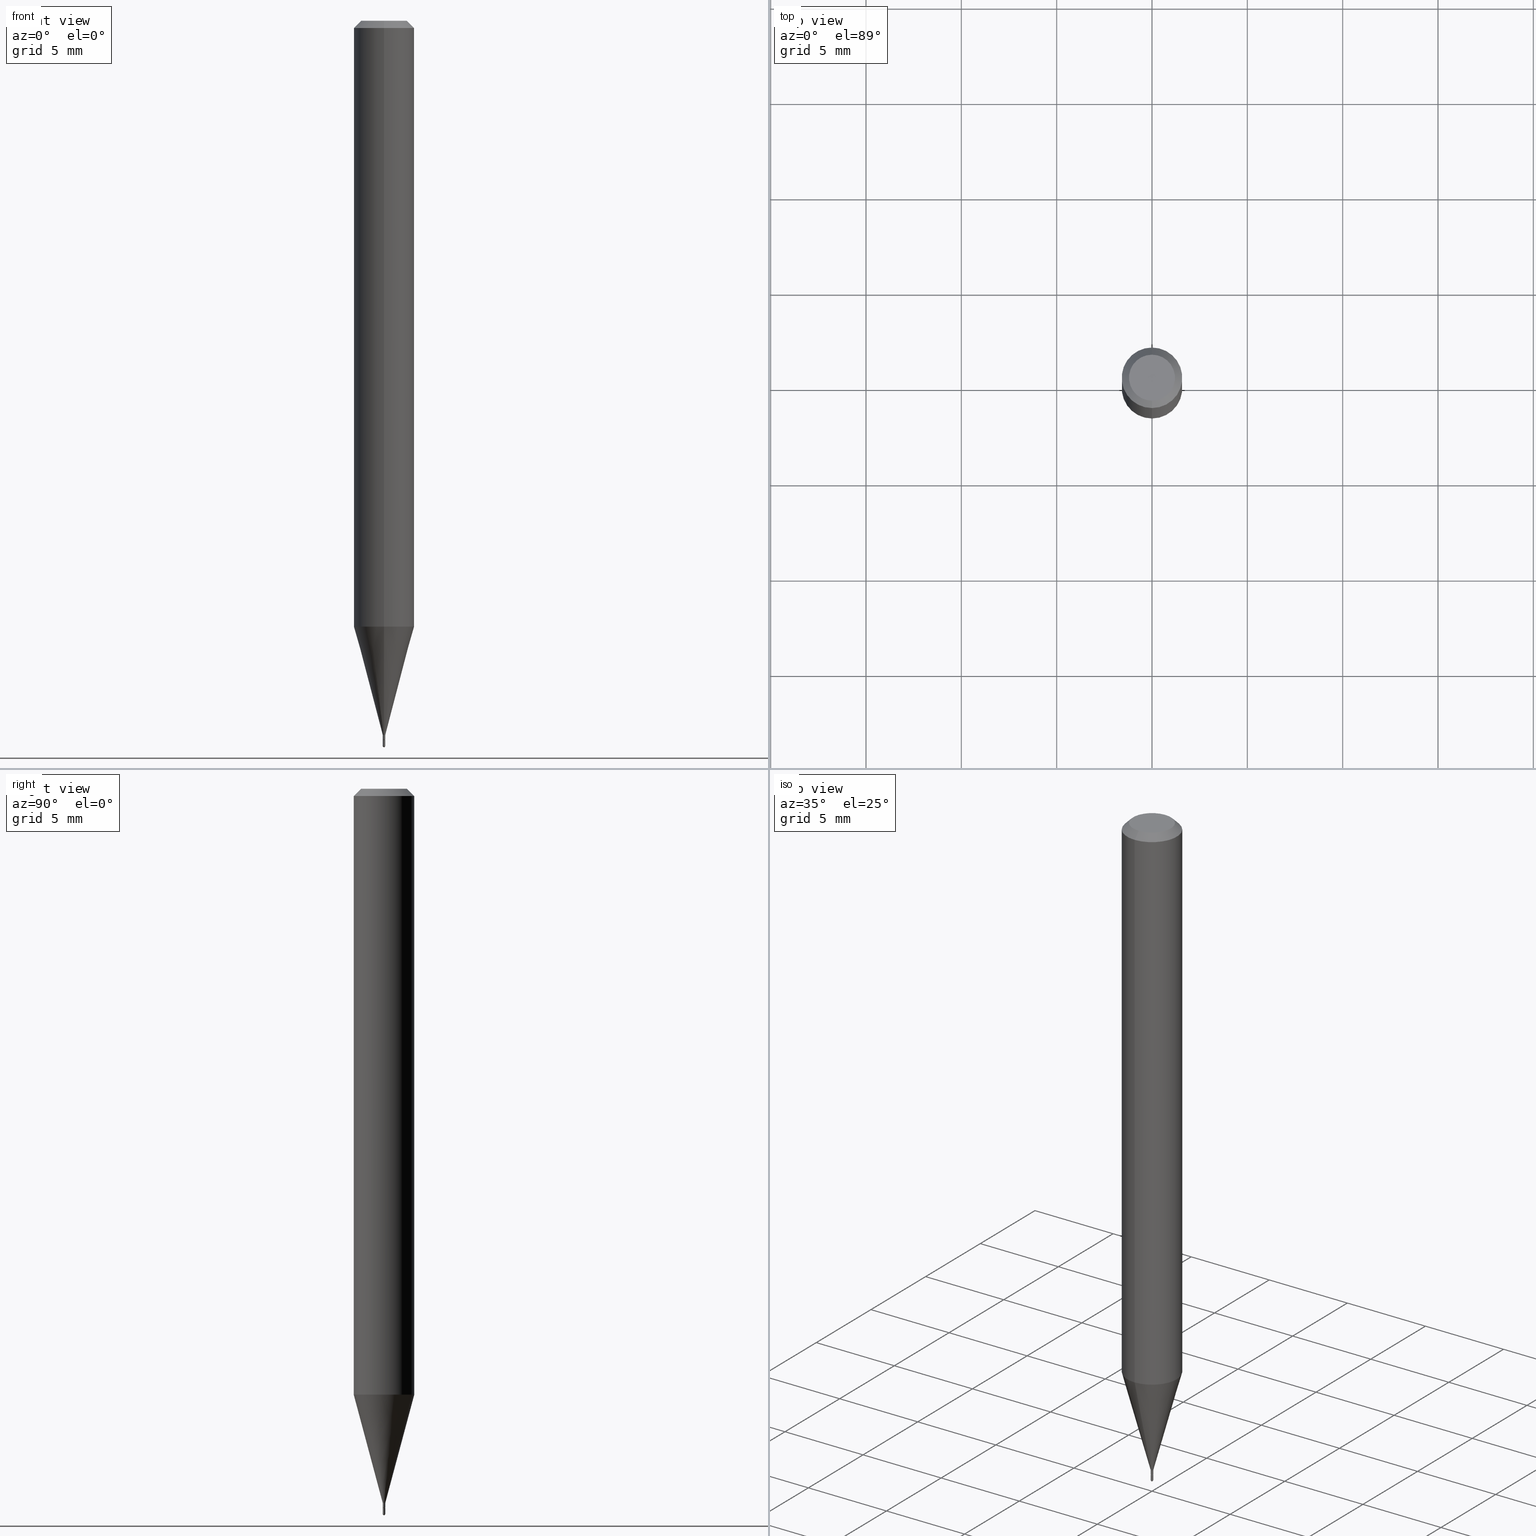
[diagram: canonical four-view strip — front | top / right | iso, engineering-drawing reading convention]
A machine part, canonical four-view strip (front | top / right | iso — engineering-drawing reading convention). The complete STEP part file that produces these views, byte-faithful:
ISO-10303-21;
HEADER;
FILE_DESCRIPTION (( 'STEP AP203' ),
    '1' );
FILE_NAME ('03103.STEP',
    '2024-03-08T18:11:31',
    ( '' ),
    ( '' ),
    'SwSTEP 2.0',
    'SolidWorks 2023',
    '' );
FILE_SCHEMA (( 'CONFIG_CONTROL_DESIGN' ));
ENDSEC;

DATA;
#1 = DIRECTION ( 'NONE',  ( -6.982962677686265922E-15, -1.000000000000000000, 0.000000000000000000 ) ) ;
#2 = AXIS2_PLACEMENT_3D ( 'NONE', #252, #399, #29 ) ;
#3 = FACE_OUTER_BOUND ( 'NONE', #314, .T. ) ;
#4 = EDGE_LOOP ( 'NONE', ( #382, #242 ) ) ;
#5 = CARTESIAN_POINT ( 'NONE',  ( 4.440892098500930859E-16, 0.06249999999999562850, -1.251076951545868177 ) ) ;
#6 = DIRECTION ( 'NONE',  ( 6.982962677686265922E-15, 1.000000000000000000, -3.483106191921935554E-15 ) ) ;
#7 = EDGE_CURVE ( 'NONE', #18, #315, #191, .T. ) ;
#8 = ORIENTED_EDGE ( 'NONE', *, *, #290, .T. ) ;
#9 = VERTEX_POINT ( 'NONE', #427 ) ;
#10 = AXIS2_PLACEMENT_3D ( 'NONE', #197, #121, #69 ) ;
#11 = AXIS2_PLACEMENT_3D ( 'NONE', #27, #292, #438 ) ;
#12 = DIRECTION ( 'NONE',  ( 1.000000000000000000, -6.982962677686266711E-15, 4.883557194083112901E-29 ) ) ;
#13 = PRODUCT_DEFINITION_SHAPE ( 'NONE', 'NONE',  #94 ) ;
#14 = DIRECTION ( 'NONE',  ( -6.982962677686266711E-15, -1.000000000000000000, 3.492036710041802963E-15 ) ) ;
#15 = EDGE_CURVE ( 'NONE', #431, #81, #110, .T. ) ;
#16 = AXIS2_PLACEMENT_3D ( 'NONE', #137, #338, #297 ) ;
#17 = DIRECTION ( 'NONE',  ( -6.982962677686265922E-15, -1.000000000000000000, 0.000000000000000000 ) ) ;
#18 = VERTEX_POINT ( 'NONE', #206 ) ;
#19 = ORIENTED_EDGE ( 'NONE', *, *, #226, .T. ) ;
#20 = CIRCLE ( 'NONE', #171, 0.002499999999999924592 ) ;
#21 = CIRCLE ( 'NONE', #11, 0.06250000000000000000 ) ;
#22 = CC_DESIGN_PERSON_AND_ORGANIZATION_ASSIGNMENT ( #436, #363, ( #164 ) ) ;
#23 = CYLINDRICAL_SURFACE ( 'NONE', #10, 0.002499999999999998751 ) ;
#24 = APPROVAL ( #271, 'UNSPECIFIED' ) ;
#25 = VECTOR ( 'NONE', #162, 39.37007874015748854 ) ;
#26 = CARTESIAN_POINT ( 'NONE',  ( -4.364351673553912750E-16, -0.06250000000000005551, -0.01499999999999954321 ) ) ;
#27 = CARTESIAN_POINT ( 'NONE',  ( 3.667621488824774095E-31, -5.238055065062620777E-17, -0.01499999999999976179 ) ) ;
#28 = EDGE_CURVE ( 'NONE', #18, #370, #313, .T. ) ;
#29 = DIRECTION ( 'NONE',  ( -6.982962677686265922E-15, -1.000000000000000000, 3.483106191921935554E-15 ) ) ;
#30 = CARTESIAN_POINT ( 'NONE',  ( 3.606494464011085468E-29, -5.150754147311658641E-15, -1.474999999999999867 ) ) ;
#31 = DIRECTION ( 'NONE',  ( -2.445468806185136877E-29, 3.491481338843145188E-15, 1.000000000000000000 ) ) ;
#32 = ORIENTED_EDGE ( 'NONE', *, *, #357, .F. ) ;
#33 = AXIS2_PLACEMENT_3D ( 'NONE', #396, #166, #477 ) ;
#34 = ADVANCED_FACE ( 'NONE', ( #66 ), #23, .T. ) ;
#35 = CARTESIAN_POINT ( 'NONE',  ( 3.630945273936584167E-29, -5.185674514412077436E-15, -1.485000000000000098 ) ) ;
#36 = DIRECTION ( 'NONE',  ( 1.000000000000000000, 0.000000000000000000, 0.000000000000000000 ) ) ;
#37 = ORIENTED_EDGE ( 'NONE', *, *, #444, .T. ) ;
#38 = PERSON_AND_ORGANIZATION ( #105, #224 ) ;
#39 = DIRECTION ( 'NONE',  ( -6.982962677686265133E-15, -1.000000000000000000, 0.000000000000000000 ) ) ;
#40 = CARTESIAN_POINT ( 'NONE',  ( 1.776356839403800684E-17, 0.002499999999994770728, -1.474999999999999867 ) ) ;
#41 = APPROVAL_STATUS ( 'not_yet_approved' ) ;
#42 = APPLICATION_PROTOCOL_DEFINITION ( 'international standard', 'config_control_design', 1994, #423 ) ;
#43 = CARTESIAN_POINT ( 'NONE',  ( 3.631521177184928138E-29, -5.184849788182071492E-15, -1.485000000000000098 ) ) ;
#44 = COORDINATED_UNIVERSAL_TIME_OFFSET ( 5, 0, .BEHIND. ) ;
#45 = CC_DESIGN_APPROVAL ( #329, ( #94 ) ) ;
#46 = DIRECTION ( 'NONE',  ( -2.445080992549888330E-29, 3.492036710041802569E-15, 1.000000000000000000 ) ) ;
#47 = CARTESIAN_POINT ( 'NONE',  ( 0.002499999999999998751, -5.202307194876286528E-15, -1.485000000000000098 ) ) ;
#48 = DIRECTION ( 'NONE',  ( 5.024295867788189396E-15, 0.7071067811865678898, 0.7071067811865271446 ) ) ;
#49 = PRODUCT ( '03103', '03103', '', ( #367 ) ) ;
#50 = ORIENTED_EDGE ( 'NONE', *, *, #323, .F. ) ;
#51 = CIRCLE ( 'NONE', #2, 0.06250000000000000000 ) ;
#52 = APPROVAL_PERSON_ORGANIZATION ( #510, #253, #469 ) ;
#53 = LINE ( 'NONE', #465, #260 ) ;
#54 = ORIENTED_EDGE ( 'NONE', *, *, #170, .F. ) ;
#55 = VERTEX_POINT ( 'NONE', #26 ) ;
#56 = EDGE_CURVE ( 'NONE', #315, #18, #20, .T. ) ;
#57 = DIRECTION ( 'NONE',  ( -2.445080992549888330E-29, 3.492036710041802569E-15, 1.000000000000000000 ) ) ;
#58 = FACE_OUTER_BOUND ( 'NONE', #460, .T. ) ;
#59 = CIRCLE ( 'NONE', #403, 0.002499999999999998751 ) ;
#60 = CIRCLE ( 'NONE', #125, 0.002499999999999883826 ) ;
#61 = ADVANCED_FACE ( 'NONE', ( #213 ), #79, .T. ) ;
#62 = DIRECTION ( 'NONE',  ( -2.445080992549888330E-29, 3.492036710041802569E-15, 1.000000000000000000 ) ) ;
#63 = ORIENTED_EDGE ( 'NONE', *, *, #400, .F. ) ;
#64 = ORIENTED_EDGE ( 'NONE', *, *, #134, .T. ) ;
#65 = ORIENTED_EDGE ( 'NONE', *, *, #312, .F. ) ;
#66 = FACE_OUTER_BOUND ( 'NONE', #398, .T. ) ;
#67 = ORIENTED_EDGE ( 'NONE', *, *, #216, .T. ) ;
#68 = ADVANCED_FACE ( 'NONE', ( #3 ), #330, .T. ) ;
#69 = DIRECTION ( 'NONE',  ( 1.000000000000000000, -6.982962677686266711E-15, 4.876176775795936914E-29 ) ) ;
#70 = CARTESIAN_POINT ( 'NONE',  ( 3.630945273936584167E-29, -5.185674514412077436E-15, -1.485000000000000098 ) ) ;
#71 = APPROVAL_DATE_TIME ( #284, #253 ) ;
#72 = CONICAL_SURFACE ( 'NONE', #379, 0.002499999999999921122, 0.2617993877991504625 ) ;
#73 = CARTESIAN_POINT ( 'NONE',  ( 1.745740669425197348E-17, 0.002499999999994814096, -1.485000000000000098 ) ) ;
#74 = AXIS2_PLACEMENT_3D ( 'NONE', #383, #195, #501 ) ;
#75 = DIRECTION ( 'NONE',  ( -6.982962677686265922E-15, -1.000000000000000000, 3.492036710041802569E-15 ) ) ;
#76 = DIRECTION ( 'NONE',  ( -6.982962677686265133E-15, -1.000000000000000000, 0.000000000000000000 ) ) ;
#77 = EDGE_CURVE ( 'NONE', #458, #131, #59, .T. ) ;
#78 = CARTESIAN_POINT ( 'NONE',  ( 3.606494464011085468E-29, -5.150754147311658641E-15, -1.474999999999999867 ) ) ;
#79 = CYLINDRICAL_SURFACE ( 'NONE', #200, 0.06250000000000000000 ) ;
#80 = ADVANCED_FACE ( 'NONE', ( #223 ), #146, .T. ) ;
#81 = VERTEX_POINT ( 'NONE', #178 ) ;
#82 = DIRECTION ( 'NONE',  ( 1.000000000000000000, -6.982962677686142071E-15, 0.000000000000000000 ) ) ;
#83 = DIRECTION ( 'NONE',  ( 1.000000000000000000, -6.982962677686142071E-15, 0.000000000000000000 ) ) ;
#84 = DATE_AND_TIME ( #291, #411 ) ;
#85 = CONICAL_SURFACE ( 'NONE', #214, 0.002499999999999921122, 0.2617993877991504625 ) ;
#86 = CIRCLE ( 'NONE', #404, 0.002499999999999921122 ) ;
#87 = DIRECTION ( 'NONE',  ( -2.445080992549888330E-29, 3.492036710041802569E-15, 1.000000000000000000 ) ) ;
#88 = ORIENTED_EDGE ( 'NONE', *, *, #300, .F. ) ;
#89 = MANIFOLD_SOLID_BREP ( 'Body-Move/Copy2[2]', #286 ) ;
#90 = EDGE_LOOP ( 'NONE', ( #305, #259, #494, #454 ) ) ;
#91 = AXIS2_PLACEMENT_3D ( 'NONE', #145, #46, #412 ) ;
#92 = EDGE_CURVE ( 'NONE', #81, #431, #274, .T. ) ;
#93 = CARTESIAN_POINT ( 'NONE',  ( -1.396592535533622474E-17, -0.002000000000005185997, -1.485000000000000098 ) ) ;
#94 = PRODUCT_DEFINITION ( 'UNKNOWN', '', #192, #126 ) ;
#95 = ADVANCED_FACE ( 'NONE', ( #141 ), #85, .T. ) ;
#96 = CARTESIAN_POINT ( 'NONE',  ( -0.002499999999999998751, -5.188907978155838555E-15, -1.485000000000000098 ) ) ;
#97 = DIRECTION ( 'NONE',  ( -2.445080992549888330E-29, 3.492036710041802569E-15, 1.000000000000000000 ) ) ;
#98 = EDGE_LOOP ( 'NONE', ( #116, #416 ) ) ;
#99 = EDGE_CURVE ( 'NONE', #422, #9, #317, .T. ) ;
#100 = AXIS2_PLACEMENT_3D ( 'NONE', #258, #218, #369 ) ;
#101 = APPROVAL_PERSON_ORGANIZATION ( #243, #329, #316 ) ;
#102 = CARTESIAN_POINT ( 'NONE',  ( 3.630945273936584167E-29, -5.185674514412077436E-15, -1.485000000000000098 ) ) ;
#103 = ORIENTED_EDGE ( 'NONE', *, *, #296, .T. ) ;
#104 = LENGTH_MEASURE_WITH_UNIT ( LENGTH_MEASURE( 0.02539999999999999897 ), #283 );
#105 = PERSON ( 'UNSPECIFIED', 'UNSPECIFIED', 'UNSPECIFIED', ('UNSPECIFIED'), ('UNSPECIFIED'), ('UNSPECIFIED') ) ;
#106 = DIRECTION ( 'NONE',  ( -1.000000000000000000, 6.982962677686265922E-15, -4.876176775795935793E-29 ) ) ;
#107 = ADVANCED_FACE ( 'NONE', ( #326 ), #351, .F. ) ;
#108 = EDGE_LOOP ( 'NONE', ( #54, #496, #103, #406 ) ) ;
#109 = ORIENTED_EDGE ( 'NONE', *, *, #266, .T. ) ;
#110 = CIRCLE ( 'NONE', #322, 0.06250000000000000000 ) ;
#111 = EDGE_CURVE ( 'NONE', #360, #81, #120, .T. ) ;
#112 = AXIS2_PLACEMENT_3D ( 'NONE', #247, #117, #6 ) ;
#113 = VERTEX_POINT ( 'NONE', #159 ) ;
#114 = VERTEX_POINT ( 'NONE', #238 ) ;
#115 = CC_DESIGN_PERSON_AND_ORGANIZATION_ASSIGNMENT ( #38, #348, ( #94 ) ) ;
#116 = ORIENTED_EDGE ( 'NONE', *, *, #99, .F. ) ;
#117 = DIRECTION ( 'NONE',  ( 2.445080992549888330E-29, -3.492036710041802569E-15, -1.000000000000000000 ) ) ;
#118 = DIRECTION ( 'NONE',  ( -2.445080992549888330E-29, 3.492036710041802569E-15, 1.000000000000000000 ) ) ;
#119 = CARTESIAN_POINT ( 'NONE',  ( -1.745740669417863715E-17, -0.002500000000005170395, -1.497500000000000053 ) ) ;
#120 = LINE ( 'NONE', #470, #344 ) ;
#121 = DIRECTION ( 'NONE',  ( -2.445468806185136597E-29, 3.491481338843145583E-15, 1.000000000000000000 ) ) ;
#122 = ORIENTED_EDGE ( 'NONE', *, *, #226, .F. ) ;
#123 = CARTESIAN_POINT ( 'NONE',  ( -0.002499999999999998751, 1.776356839400249577E-17, -1.229733772563725911E-31 ) ) ;
#124 = VECTOR ( 'NONE', #417, 39.37007874015748143 ) ;
#125 = AXIS2_PLACEMENT_3D ( 'NONE', #176, #257, #402 ) ;
#126 = DESIGN_CONTEXT ( 'detailed design', #437, 'design' ) ;
#127 = CARTESIAN_POINT ( 'NONE',  ( 0.000000000000000000, 0.000000000000000000, 0.000000000000000000 ) ) ;
#128 = ADVANCED_FACE ( 'NONE', ( #391 ), #189, .T. ) ;
#129 = DIRECTION ( 'NONE',  ( -6.982962677686265922E-15, -1.000000000000000000, 3.492036710041802175E-15 ) ) ;
#130 = DIRECTION ( 'NONE',  ( -6.982962677686265133E-15, -1.000000000000000000, 0.000000000000000000 ) ) ;
#131 = VERTEX_POINT ( 'NONE', #96 ) ;
#132 = DIRECTION ( 'NONE',  ( -2.445080992549888330E-29, 3.492036710041802569E-15, 1.000000000000000000 ) ) ;
#133 = CALENDAR_DATE ( 2024, 8, 3 ) ;
#134 = EDGE_CURVE ( 'NONE', #81, #55, #448, .T. ) ;
#135 = ORIENTED_EDGE ( 'NONE', *, *, #400, .T. ) ;
#136 = DATE_AND_TIME ( #246, #288 ) ;
#137 = CARTESIAN_POINT ( 'NONE',  ( 3.662089537262242009E-29, -5.228493304917610659E-15, -1.497500000000000053 ) ) ;
#138 = DIRECTION ( 'NONE',  ( 2.445080992549888330E-29, -3.492036710041802569E-15, -1.000000000000000000 ) ) ;
#139 = CARTESIAN_POINT ( 'NONE',  ( 3.058984474442059272E-29, -4.368806641885360110E-15, -1.251076951545867955 ) ) ;
#140 = ORIENTED_EDGE ( 'NONE', *, *, #15, .F. ) ;
#141 = FACE_OUTER_BOUND ( 'NONE', #90, .T. ) ;
#142 = CIRCLE ( 'NONE', #318, 0.002499999999999998751 ) ;
#143 = DIRECTION ( 'NONE',  ( -6.982962677686266711E-15, -1.000000000000000000, 0.000000000000000000 ) ) ;
#144 = PERSON_AND_ORGANIZATION ( #105, #224 ) ;
#145 = CARTESIAN_POINT ( 'NONE',  ( 0.000000000000000000, 0.000000000000000000, 0.000000000000000000 ) ) ;
#146 = CONICAL_SURFACE ( 'NONE', #100, 0.002000000000000000475, 0.7853981633974737031 ) ;
#147 = VECTOR ( 'NONE', #401, 39.37007874015748143 ) ;
#148 = LINE ( 'NONE', #449, #507 ) ;
#149 = EDGE_CURVE ( 'NONE', #152, #114, #230, .T. ) ;
#150 = DIRECTION ( 'NONE',  ( 1.000000000000000000, -6.982962677686266711E-15, 4.883557194083112901E-29 ) ) ;
#151 = CARTESIAN_POINT ( 'NONE',  ( 3.662089537262242009E-29, -5.228493304917610659E-15, -1.497500000000000053 ) ) ;
#152 = VERTEX_POINT ( 'NONE', #184 ) ;
#153 = DIRECTION ( 'NONE',  ( 1.000000000000000000, -6.982962677686142071E-15, 0.000000000000000000 ) ) ;
#154 = CIRCLE ( 'NONE', #231, 0.04749999999999999362 ) ;
#155 = DATE_AND_TIME ( #498, #302 ) ;
#156 = ORIENTED_EDGE ( 'NONE', *, *, #277, .T. ) ;
#157 = CC_DESIGN_DATE_AND_TIME_ASSIGNMENT ( #204, #512, ( #164 ) ) ;
#158 = CARTESIAN_POINT ( 'NONE',  ( 3.661875745689947302E-29, -5.228799466617397749E-15, -1.497500000000000053 ) ) ;
#159 = CARTESIAN_POINT ( 'NONE',  ( 4.440892098500933817E-16, 0.06249999999999995837, -0.01499999999999997863 ) ) ;
#160 = ORIENTED_EDGE ( 'NONE', *, *, #339, .F. ) ;
#161 = UNCERTAINTY_MEASURE_WITH_UNIT (LENGTH_MEASURE( 1.000000000000000082E-05 ), #426, 'distance_accuracy_value', 'NONE');
#162 = DIRECTION ( 'NONE',  ( -4.937700262164671893E-15, -0.7071067811865628938, 0.7071067811865319186 ) ) ;
#163 = AXIS2_PLACEMENT_3D ( 'NONE', #30, #57, #380 ) ;
#164 = SECURITY_CLASSIFICATION ( '', '', #325 ) ;
#165 = VERTEX_POINT ( 'NONE', #232 ) ;
#166 = DIRECTION ( 'NONE',  ( -2.445468806185136597E-29, 3.491481338843145583E-15, 1.000000000000000000 ) ) ;
#167 = DIRECTION ( 'NONE',  ( -2.445080992549888330E-29, 3.492036710041802569E-15, 1.000000000000000000 ) ) ;
#168 = ORIENTED_EDGE ( 'NONE', *, *, #175, .T. ) ;
#169 = CARTESIAN_POINT ( 'NONE',  ( -1.745740669417888983E-17, -0.002500000000005115752, -1.484500000000000153 ) ) ;
#170 = EDGE_CURVE ( 'NONE', #114, #55, #148, .T. ) ;
#171 = AXIS2_PLACEMENT_3D ( 'NONE', #352, #97, #1 ) ;
#172 = DIRECTION ( 'NONE',  ( -2.445080992549888330E-29, 3.492036710041802569E-15, 1.000000000000000000 ) ) ;
#173 = APPROVAL_PERSON_ORGANIZATION ( #181, #24, #375 ) ;
#174 = ORIENTED_EDGE ( 'NONE', *, *, #170, .T. ) ;
#175 = EDGE_CURVE ( 'NONE', #9, #18, #415, .T. ) ;
#176 = CARTESIAN_POINT ( 'NONE',  ( 3.661875745689947302E-29, -5.228799466617397749E-15, -1.497500000000000053 ) ) ;
#177 = CARTESIAN_POINT ( 'NONE',  ( 3.606494464011085468E-29, -5.150754147311658641E-15, -1.474999999999999867 ) ) ;
#178 = CARTESIAN_POINT ( 'NONE',  ( -4.364351673553610517E-16, -0.06250000000000435763, -1.251076951545867733 ) ) ;
#179 = ORIENTED_EDGE ( 'NONE', *, *, #99, .T. ) ;
#180 = CARTESIAN_POINT ( 'NONE',  ( 3.662089537262242009E-29, -5.228493304917610659E-15, -1.497500000000000053 ) ) ;
#181 = PERSON_AND_ORGANIZATION ( #105, #224 ) ;
#182 = AXIS2_PLACEMENT_3D ( 'NONE', #481, #138, #263 ) ;
#183 = PLANE ( 'NONE',  #349 ) ;
#184 = CARTESIAN_POINT ( 'NONE',  ( 3.840629472727447874E-16, 0.04749999999999999362, 7.364327909283748346E-17 ) ) ;
#185 = AXIS2_PLACEMENT_3D ( 'NONE', #73, #241, #106 ) ;
#186 = CIRCLE ( 'NONE', #381, 0.002499999999999883826 ) ;
#187 = CARTESIAN_POINT ( 'NONE',  ( 3.316907271900976096E-16, 0.04749999999999999362, -4.611423231707403477E-17 ) ) ;
#188 = EDGE_CURVE ( 'NONE', #315, #360, #53, .T. ) ;
#189 = SPHERICAL_SURFACE ( 'NONE', #453, 0.002499999999999883826 ) ;
#190 = VERTEX_POINT ( 'NONE', #119 ) ;
#191 = CIRCLE ( 'NONE', #389, 0.002499999999999924592 ) ;
#192 = PRODUCT_DEFINITION_FORMATION_WITH_SPECIFIED_SOURCE ( 'ANY', '', #49, .NOT_KNOWN. ) ;
#193 = FACE_OUTER_BOUND ( 'NONE', #278, .T. ) ;
#194 = APPROVAL_DATE_TIME ( #155, #24 ) ;
#195 = DIRECTION ( 'NONE',  ( -2.445080992549888330E-29, 3.492036710041802569E-15, 1.000000000000000000 ) ) ;
#196 = CARTESIAN_POINT ( 'NONE',  ( 3.058984474442059272E-29, -4.368806641885360110E-15, -1.251076951545867955 ) ) ;
#197 = CARTESIAN_POINT ( 'NONE',  ( 0.000000000000000000, 0.000000000000000000, 0.000000000000000000 ) ) ;
#198 = ORIENTED_EDGE ( 'NONE', *, *, #312, .T. ) ;
#199 = APPROVAL_DATE_TIME ( #136, #329 ) ;
#200 = AXIS2_PLACEMENT_3D ( 'NONE', #405, #364, #129 ) ;
#201 = DIRECTION ( 'NONE',  ( 1.000000000000000000, -6.982962677686266711E-15, 4.876176775795936914E-29 ) ) ;
#202 = ADVANCED_FACE ( 'NONE', ( #193 ), #72, .T. ) ;
#203 = AXIS2_PLACEMENT_3D ( 'NONE', #472, #118, #240 ) ;
#204 = DATE_AND_TIME ( #133, #335 ) ;
#205 = CALENDAR_DATE ( 2024, 8, 3 ) ;
#206 = CARTESIAN_POINT ( 'NONE',  ( 1.776356839403821638E-17, 0.002499999999994733865, -1.484500000000000153 ) ) ;
#207 = EDGE_CURVE ( 'NONE', #360, #370, #293, .T. ) ;
#208 = CARTESIAN_POINT ( 'NONE',  ( -1.745740669417904699E-17, -0.002500000000005071516, -1.474999999999999867 ) ) ;
#209 = CARTESIAN_POINT ( 'NONE',  ( 2.309263891220657005E-16, 0.002499999999994770728, -1.474999999999999867 ) ) ;
#210 = PERSON_AND_ORGANIZATION ( #105, #224 ) ;
#211 = ORIENTED_EDGE ( 'NONE', *, *, #175, .F. ) ;
#212 = DIRECTION ( 'NONE',  ( 4.937700262164548042E-15, 0.7071067811865451302, -0.7071067811865499042 ) ) ;
#213 = FACE_OUTER_BOUND ( 'NONE', #229, .T. ) ;
#214 = AXIS2_PLACEMENT_3D ( 'NONE', #295, #445, #130 ) ;
#215 = AXIS2_PLACEMENT_3D ( 'NONE', #102, #328, #432 ) ;
#216 = EDGE_CURVE ( 'NONE', #499, #190, #186, .T. ) ;
#217 = CARTESIAN_POINT ( 'NONE',  ( 4.364351673553919652E-16, 0.06249999999999995143, -0.01499999999999997863 ) ) ;
#218 = DIRECTION ( 'NONE',  ( -2.445080992549888330E-29, 3.492036710041802569E-15, 1.000000000000000000 ) ) ;
#219 = VERTEX_POINT ( 'NONE', #414 ) ;
#220 = DIRECTION ( 'NONE',  ( -2.445080992549888330E-29, 3.492036710041802569E-15, 1.000000000000000000 ) ) ;
#221 = EDGE_LOOP ( 'NONE', ( #332, #109 ) ) ;
#222 = DIRECTION ( 'NONE',  ( -2.445468806185136597E-29, 3.491481338843145583E-15, 1.000000000000000000 ) ) ;
#223 = FACE_OUTER_BOUND ( 'NONE', #482, .T. ) ;
#224 = ORGANIZATION ( 'UNSPECIFIED', 'UNSPECIFIED', '' ) ;
#225 = PERSON_AND_ORGANIZATION_ROLE ( 'design_owner' ) ;
#226 = EDGE_CURVE ( 'NONE', #165, #190, #279, .T. ) ;
#227 = CYLINDRICAL_SURFACE ( 'NONE', #91, 0.002499999999999923291 ) ;
#228 = ADVANCED_FACE ( 'NONE', ( #455 ), #345, .T. ) ;
#229 = EDGE_LOOP ( 'NONE', ( #461, #156, #65, #428 ) ) ;
#230 = CIRCLE ( 'NONE', #248, 0.04749999999999999362 ) ;
#231 = AXIS2_PLACEMENT_3D ( 'NONE', #459, #234, #350 ) ;
#232 = CARTESIAN_POINT ( 'NONE',  ( -0.002499999999999998751, -5.188907978155838555E-15, -1.497500000000000053 ) ) ;
#233 = CARTESIAN_POINT ( 'NONE',  ( -5.856336297269022681E-45, 8.363952522933223333E-31, 2.395150228198230981E-16 ) ) ;
#234 = DIRECTION ( 'NONE',  ( -2.445080992549888330E-29, 3.492036710041802569E-15, 1.000000000000000000 ) ) ;
#235 = VECTOR ( 'NONE', #212, 39.37007874015748143 ) ;
#236 = DIMENSIONAL_EXPONENTS ( 1.000000000000000000, 0.000000000000000000, 0.000000000000000000, 0.000000000000000000, 0.000000000000000000, 0.000000000000000000, 0.000000000000000000 ) ;
#237 = CC_DESIGN_APPROVAL ( #253, ( #164 ) ) ;
#238 = CARTESIAN_POINT ( 'NONE',  ( -3.773273898774340269E-16, -0.04749999999999999362, 4.053867665468087251E-16 ) ) ;
#239 = EDGE_LOOP ( 'NONE', ( #160, #19, #419, #327, #275 ) ) ;
#240 = DIRECTION ( 'NONE',  ( -6.982962677686265133E-15, -1.000000000000000000, 3.492036710041802175E-15 ) ) ;
#241 = DIRECTION ( 'NONE',  ( 2.438088387897960049E-29, -3.491481338843145188E-15, -1.000000000000000000 ) ) ;
#242 = ORIENTED_EDGE ( 'NONE', *, *, #502, .T. ) ;
#243 = PERSON_AND_ORGANIZATION ( #105, #224 ) ;
#244 = CYLINDRICAL_SURFACE ( 'NONE', #203, 0.002499999999999923291 ) ;
#245 = EDGE_CURVE ( 'NONE', #190, #219, #324, .T. ) ;
#246 = CALENDAR_DATE ( 2024, 8, 3 ) ;
#247 = CARTESIAN_POINT ( 'NONE',  ( 3.667621488824774095E-31, -5.238055065062620777E-17, -0.01499999999999976179 ) ) ;
#248 = AXIS2_PLACEMENT_3D ( 'NONE', #233, #343, #14 ) ;
#249 = CIRCLE ( 'NONE', #33, 0.002499999999999998751 ) ;
#250 = SHAPE_DEFINITION_REPRESENTATION ( #13, #311 ) ;
#251 = ORIENTED_EDGE ( 'NONE', *, *, #296, .F. ) ;
#252 = CARTESIAN_POINT ( 'NONE',  ( 3.667621488824774095E-31, -5.238055065062620777E-17, -0.01499999999999976179 ) ) ;
#253 = APPROVAL ( #321, 'UNSPECIFIED' ) ;
#254 = CARTESIAN_POINT ( 'NONE',  ( 3.662089537262242009E-29, -5.228493304917610659E-15, -1.497500000000000053 ) ) ;
#255 = DIRECTION ( 'NONE',  ( 0.000000000000000000, 0.000000000000000000, 1.000000000000000000 ) ) ;
#256 = ORIENTED_EDGE ( 'NONE', *, *, #188, .F. ) ;
#257 = DIRECTION ( 'NONE',  ( 1.000000000000000000, -7.105427357601001070E-15, 4.926315508542082329E-29 ) ) ;
#258 = CARTESIAN_POINT ( 'NONE',  ( 3.630945273936584167E-29, -5.185674514412077436E-15, -1.485000000000000098 ) ) ;
#259 = ORIENTED_EDGE ( 'NONE', *, *, #486, .T. ) ;
#260 = VECTOR ( 'NONE', #167, 39.37007874015748143 ) ;
#261 = DATE_TIME_ROLE ( 'creation_date' ) ;
#262 = DIRECTION ( 'NONE',  ( -2.445468806185136597E-29, 3.491481338843145583E-15, 1.000000000000000000 ) ) ;
#263 = DIRECTION ( 'NONE',  ( 6.982962677686265922E-15, 1.000000000000000000, -3.483106191921935554E-15 ) ) ;
#264 = DIRECTION ( 'NONE',  ( -6.982962677686265133E-15, -1.000000000000000000, 0.000000000000000000 ) ) ;
#265 = FACE_OUTER_BOUND ( 'NONE', #306, .T. ) ;
#266 = EDGE_CURVE ( 'NONE', #131, #458, #249, .T. ) ;
#267 = AXIS2_PLACEMENT_3D ( 'NONE', #139, #220, #336 ) ;
#268 = CIRCLE ( 'NONE', #16, 0.002499999999999998751 ) ;
#269 = CARTESIAN_POINT ( 'NONE',  ( 1.776356839403870326E-17, 0.002499999999994712181, -1.497500000000000053 ) ) ;
#270 = DIRECTION ( 'NONE',  ( -6.982962677686266711E-15, -1.000000000000000000, 0.000000000000000000 ) ) ;
#271 = APPROVAL_STATUS ( 'not_yet_approved' ) ;
#272 = DIRECTION ( 'NONE',  ( -4.851104656540964275E-15, -0.7071067811865500152, -0.7071067811865450192 ) ) ;
#273 = MANIFOLD_SOLID_BREP ( 'Body-Move/Copy2[1]', #439 ) ;
#274 = CIRCLE ( 'NONE', #267, 0.06250000000000000000 ) ;
#275 = ORIENTED_EDGE ( 'NONE', *, *, #266, .F. ) ;
#276 = VECTOR ( 'NONE', #31, 39.37007874015748143 ) ;
#277 = EDGE_CURVE ( 'NONE', #431, #113, #282, .T. ) ;
#278 = EDGE_LOOP ( 'NONE', ( #289, #365, #354, #140 ) ) ;
#279 = CIRCLE ( 'NONE', #509, 0.002499999999999998751 ) ;
#280 = DIRECTION ( 'NONE',  ( -2.445080992549888330E-29, 3.492036710041802569E-15, 1.000000000000000000 ) ) ;
#281 = EDGE_CURVE ( 'NONE', #499, #450, #60, .T. ) ;
#282 = LINE ( 'NONE', #480, #362 ) ;
#283 =( LENGTH_UNIT ( ) NAMED_UNIT ( * ) SI_UNIT ( $, .METRE. ) );
#284 = DATE_AND_TIME ( #205, #430 ) ;
#285 = DIRECTION ( 'NONE',  ( -2.445080992549888049E-29, 3.492036710041802569E-15, 1.000000000000000000 ) ) ;
#286 = CLOSED_SHELL ( 'NONE', ( #492, #228, #485, #61, #95, #202, #397, #309, #394, #347, #80, #377 ) ) ;
#287 = CARTESIAN_POINT ( 'NONE',  ( 3.667882521919262554E-29, -5.237681250814398023E-15, -1.499999999999999778 ) ) ;
#288 = LOCAL_TIME ( 13, 11, 31.00000000000000000, #505 ) ;
#289 = ORIENTED_EDGE ( 'NONE', *, *, #486, .F. ) ;
#290 = EDGE_CURVE ( 'NONE', #9, #422, #490, .T. ) ;
#291 = CALENDAR_DATE ( 2024, 8, 3 ) ;
#292 = DIRECTION ( 'NONE',  ( -2.445080992549888330E-29, 3.492036710041802569E-15, 1.000000000000000000 ) ) ;
#293 = CIRCLE ( 'NONE', #163, 0.002499999999999921122 ) ;
#294 = EDGE_LOOP ( 'NONE', ( #387, #471, #64, #32 ) ) ;
#295 = CARTESIAN_POINT ( 'NONE',  ( 3.606494464011085468E-29, -5.150754147311658641E-15, -1.474999999999999867 ) ) ;
#296 = EDGE_CURVE ( 'NONE', #152, #113, #511, .T. ) ;
#297 = DIRECTION ( 'NONE',  ( 1.000000000000000000, -6.982962677686142071E-15, 0.000000000000000000 ) ) ;
#298 = PRODUCT_RELATED_PRODUCT_CATEGORY ( 'detail', '', ( #49 ) ) ;
#299 = DIRECTION ( 'NONE',  ( -6.982962677686265922E-15, -1.000000000000000000, 0.000000000000000000 ) ) ;
#300 = EDGE_CURVE ( 'NONE', #219, #458, #366, .T. ) ;
#301 = VECTOR ( 'NONE', #280, 39.37007874015748143 ) ;
#302 = LOCAL_TIME ( 13, 11, 31.00000000000000000, #44 ) ;
#303 = CC_DESIGN_SECURITY_CLASSIFICATION ( #164, ( #192 ) ) ;
#304 = DIRECTION ( 'NONE',  ( -2.445468806185136597E-29, 3.491481338843145583E-15, 1.000000000000000000 ) ) ;
#305 = ORIENTED_EDGE ( 'NONE', *, *, #207, .T. ) ;
#306 = EDGE_LOOP ( 'NONE', ( #456, #342, #319, #50 ) ) ;
#307 = CARTESIAN_POINT ( 'NONE',  ( 3.629722733440309792E-29, -5.183928496057056339E-15, -1.484500000000000153 ) ) ;
#308 = CC_DESIGN_PERSON_AND_ORGANIZATION_ASSIGNMENT ( #210, #359, ( #192 ) ) ;
#309 = ADVANCED_FACE ( 'NONE', ( #433 ), #429, .T. ) ;
#310 = DIRECTION ( 'NONE',  ( -1.000000000000000000, 6.982962677686265922E-15, -4.883557194083112340E-29 ) ) ;
#311 = ADVANCED_BREP_SHAPE_REPRESENTATION ( '03103', ( #273, #89, #395 ), #390 ) ;
#312 = EDGE_CURVE ( 'NONE', #55, #113, #21, .T. ) ;
#313 = LINE ( 'NONE', #463, #301 ) ;
#314 = EDGE_LOOP ( 'NONE', ( #493, #67, #122, #63 ) ) ;
#315 = VERTEX_POINT ( 'NONE', #169 ) ;
#316 = APPROVAL_ROLE ( '' ) ;
#317 = CIRCLE ( 'NONE', #446, 0.002000000000000000475 ) ;
#318 = AXIS2_PLACEMENT_3D ( 'NONE', #180, #222, #331 ) ;
#319 = ORIENTED_EDGE ( 'NONE', *, *, #188, .T. ) ;
#320 = LINE ( 'NONE', #123, #276 ) ;
#321 = APPROVAL_STATUS ( 'not_yet_approved' ) ;
#322 = AXIS2_PLACEMENT_3D ( 'NONE', #196, #62, #466 ) ;
#323 = EDGE_CURVE ( 'NONE', #370, #360, #86, .T. ) ;
#324 = CIRCLE ( 'NONE', #464, 0.002499999999999998751 ) ;
#325 = SECURITY_CLASSIFICATION_LEVEL ( 'unclassified' ) ;
#326 = FACE_OUTER_BOUND ( 'NONE', #221, .T. ) ;
#327 = ORIENTED_EDGE ( 'NONE', *, *, #300, .T. ) ;
#328 = DIRECTION ( 'NONE',  ( -2.445080992549888330E-29, 3.492036710041802569E-15, 1.000000000000000000 ) ) ;
#329 = APPROVAL ( #41, 'UNSPECIFIED' ) ;
#330 = SPHERICAL_SURFACE ( 'NONE', #483, 0.002499999999999883826 ) ;
#331 = DIRECTION ( 'NONE',  ( 1.000000000000000000, -6.982962677686142071E-15, 0.000000000000000000 ) ) ;
#332 = ORIENTED_EDGE ( 'NONE', *, *, #77, .T. ) ;
#333 = CARTESIAN_POINT ( 'NONE',  ( 0.000000000000000000, 0.000000000000000000, 0.000000000000000000 ) ) ;
#334 = CC_DESIGN_PERSON_AND_ORGANIZATION_ASSIGNMENT ( #144, #225, ( #49 ) ) ;
#335 = LOCAL_TIME ( 13, 11, 31.00000000000000000, #478 ) ;
#336 = DIRECTION ( 'NONE',  ( -6.982962677686265922E-15, -1.000000000000000000, 4.370956789862821150E-15 ) ) ;
#337 = FACE_OUTER_BOUND ( 'NONE', #294, .T. ) ;
#338 = DIRECTION ( 'NONE',  ( -2.445468806185136597E-29, 3.491481338843145583E-15, 1.000000000000000000 ) ) ;
#339 = EDGE_CURVE ( 'NONE', #165, #131, #320, .T. ) ;
#340 = CARTESIAN_POINT ( 'NONE',  ( 3.661875745689947302E-29, -5.228799466617397749E-15, -1.497500000000000053 ) ) ;
#341 = ORIENTED_EDGE ( 'NONE', *, *, #502, .F. ) ;
#342 = ORIENTED_EDGE ( 'NONE', *, *, #7, .T. ) ;
#343 = DIRECTION ( 'NONE',  ( -2.445080992549888330E-29, 3.492036710041802569E-15, 1.000000000000000000 ) ) ;
#344 = VECTOR ( 'NONE', #355, 39.37007874015748854 ) ;
#345 = CONICAL_SURFACE ( 'NONE', #215, 0.002000000000000000475, 0.7853981633974737031 ) ;
#346 = PERSON_AND_ORGANIZATION ( #105, #224 ) ;
#347 = ADVANCED_FACE ( 'NONE', ( #361 ), #468, .F. ) ;
#348 = PERSON_AND_ORGANIZATION_ROLE ( 'creator' ) ;
#349 = AXIS2_PLACEMENT_3D ( 'NONE', #187, #374, #488 ) ;
#350 = DIRECTION ( 'NONE',  ( -6.982962677686266711E-15, -1.000000000000000000, 3.492036710041802963E-15 ) ) ;
#351 = PLANE ( 'NONE',  #185 ) ;
#352 = CARTESIAN_POINT ( 'NONE',  ( 3.629722733440309792E-29, -5.183928496057056339E-15, -1.484500000000000153 ) ) ;
#353 = DIRECTION ( 'NONE',  ( -6.982962677686265133E-15, -1.000000000000000000, 0.000000000000000000 ) ) ;
#354 = ORIENTED_EDGE ( 'NONE', *, *, #111, .T. ) ;
#355 = DIRECTION ( 'NONE',  ( -1.807323732225331323E-15, -0.2588190451025183525, 0.9659258262890689783 ) ) ;
#356 = EDGE_LOOP ( 'NONE', ( #421, #495, #407, #451 ) ) ;
#357 = EDGE_CURVE ( 'NONE', #113, #55, #51, .T. ) ;
#358 = FACE_OUTER_BOUND ( 'NONE', #239, .T. ) ;
#359 = PERSON_AND_ORGANIZATION_ROLE ( 'design_supplier' ) ;
#360 = VERTEX_POINT ( 'NONE', #208 ) ;
#361 = FACE_OUTER_BOUND ( 'NONE', #98, .T. ) ;
#362 = VECTOR ( 'NONE', #132, 39.37007874015748143 ) ;
#363 = PERSON_AND_ORGANIZATION_ROLE ( 'classification_officer' ) ;
#364 = DIRECTION ( 'NONE',  ( -2.445080992549888330E-29, 3.492036710041802569E-15, 1.000000000000000000 ) ) ;
#365 = ORIENTED_EDGE ( 'NONE', *, *, #323, .T. ) ;
#366 = LINE ( 'NONE', #435, #147 ) ;
#367 = MECHANICAL_CONTEXT ( 'NONE', #423, 'mechanical' ) ;
#368 = ADVANCED_FACE ( 'NONE', ( #358 ), #475, .T. ) ;
#369 = DIRECTION ( 'NONE',  ( -6.982962677686265133E-15, -1.000000000000000000, 0.000000000000000000 ) ) ;
#370 = VERTEX_POINT ( 'NONE', #209 ) ;
#371 = DIRECTION ( 'NONE',  ( 1.839019923739601499E-15, 0.2588190451025251249, 0.9659258262890670910 ) ) ;
#372 = CONICAL_SURFACE ( 'NONE', #182, 0.06250000000000000000, 0.7853981633974483900 ) ;
#373 = APPLICATION_PROTOCOL_DEFINITION ( 'international standard', 'config_control_design', 1994, #437 ) ;
#374 = DIRECTION ( 'NONE',  ( 2.445080992549888049E-29, -3.492036710041802569E-15, -1.000000000000000000 ) ) ;
#375 = APPROVAL_ROLE ( '' ) ;
#376 = FACE_OUTER_BOUND ( 'NONE', #424, .T. ) ;
#377 = ADVANCED_FACE ( 'NONE', ( #265 ), #227, .T. ) ;
#378 = ORIENTED_EDGE ( 'NONE', *, *, #28, .T. ) ;
#379 = AXIS2_PLACEMENT_3D ( 'NONE', #177, #440, #264 ) ;
#380 = DIRECTION ( 'NONE',  ( -6.982962677686265133E-15, -1.000000000000000000, 0.000000000000000000 ) ) ;
#381 = AXIS2_PLACEMENT_3D ( 'NONE', #158, #310, #17 ) ;
#382 = ORIENTED_EDGE ( 'NONE', *, *, #149, .T. ) ;
#383 = CARTESIAN_POINT ( 'NONE',  ( 0.000000000000000000, 0.000000000000000000, 0.000000000000000000 ) ) ;
#384 = CARTESIAN_POINT ( 'NONE',  ( 1.421085471523831627E-17, 0.001999999999994814519, -1.485000000000000098 ) ) ;
#385 = ORIENTED_EDGE ( 'NONE', *, *, #56, .F. ) ;
#386 = ORIENTED_EDGE ( 'NONE', *, *, #56, .T. ) ;
#387 = ORIENTED_EDGE ( 'NONE', *, *, #277, .F. ) ;
#388 = ORIENTED_EDGE ( 'NONE', *, *, #7, .F. ) ;
#389 = AXIS2_PLACEMENT_3D ( 'NONE', #307, #457, #299 ) ;
#390 =( GEOMETRIC_REPRESENTATION_CONTEXT ( 3 ) GLOBAL_UNCERTAINTY_ASSIGNED_CONTEXT ( ( #161 ) ) GLOBAL_UNIT_ASSIGNED_CONTEXT ( ( #426, #503, #506 ) ) REPRESENTATION_CONTEXT ( 'NONE', 'WORKASPACE' ) );
#391 = FACE_OUTER_BOUND ( 'NONE', #356, .T. ) ;
#392 = EDGE_LOOP ( 'NONE', ( #179, #168, #385, #393 ) ) ;
#393 = ORIENTED_EDGE ( 'NONE', *, *, #489, .F. ) ;
#394 = ADVANCED_FACE ( 'NONE', ( #410 ), #183, .F. ) ;
#395 = AXIS2_PLACEMENT_3D ( 'NONE', #333, #255, #36 ) ;
#396 = CARTESIAN_POINT ( 'NONE',  ( 3.631521177184928138E-29, -5.184849788182071492E-15, -1.485000000000000098 ) ) ;
#397 = ADVANCED_FACE ( 'NONE', ( #337 ), #497, .T. ) ;
#398 = EDGE_LOOP ( 'NONE', ( #135, #491, #504, #88, #37 ) ) ;
#399 = DIRECTION ( 'NONE',  ( -2.445080992549888330E-29, 3.492036710041802569E-15, 1.000000000000000000 ) ) ;
#400 = EDGE_CURVE ( 'NONE', #450, #165, #268, .T. ) ;
#401 = DIRECTION ( 'NONE',  ( -2.445468806185136877E-29, 3.491481338843145188E-15, 1.000000000000000000 ) ) ;
#402 = DIRECTION ( 'NONE',  ( 7.105427357600999492E-15, 1.000000000000000000, 0.000000000000000000 ) ) ;
#403 = AXIS2_PLACEMENT_3D ( 'NONE', #43, #474, #83 ) ;
#404 = AXIS2_PLACEMENT_3D ( 'NONE', #78, #408, #39 ) ;
#405 = CARTESIAN_POINT ( 'NONE',  ( 0.000000000000000000, 0.000000000000000000, 0.000000000000000000 ) ) ;
#406 = ORIENTED_EDGE ( 'NONE', *, *, #357, .T. ) ;
#407 = ORIENTED_EDGE ( 'NONE', *, *, #444, .F. ) ;
#408 = DIRECTION ( 'NONE',  ( -2.445080992549888330E-29, 3.492036710041802569E-15, 1.000000000000000000 ) ) ;
#409 = LINE ( 'NONE', #40, #441 ) ;
#410 = FACE_OUTER_BOUND ( 'NONE', #4, .T. ) ;
#411 = LOCAL_TIME ( 13, 11, 31.00000000000000000, #467 ) ;
#412 = DIRECTION ( 'NONE',  ( -6.982962677686265133E-15, -1.000000000000000000, 3.492036710041802175E-15 ) ) ;
#413 = CARTESIAN_POINT ( 'NONE',  ( -4.364351673553916201E-16, -0.06250000000000000000, 2.182522943776126359E-16 ) ) ;
#414 = CARTESIAN_POINT ( 'NONE',  ( 0.002499999999999998751, -5.224128953244057294E-15, -1.497500000000000053 ) ) ;
#415 = LINE ( 'NONE', #384, #462 ) ;
#416 = ORIENTED_EDGE ( 'NONE', *, *, #290, .F. ) ;
#417 = DIRECTION ( 'NONE',  ( -2.445080992549888330E-29, 3.492036710041802569E-15, 1.000000000000000000 ) ) ;
#418 = AXIS2_PLACEMENT_3D ( 'NONE', #35, #87, #353 ) ;
#419 = ORIENTED_EDGE ( 'NONE', *, *, #245, .T. ) ;
#420 = CC_DESIGN_APPROVAL ( #24, ( #192 ) ) ;
#421 = ORIENTED_EDGE ( 'NONE', *, *, #216, .F. ) ;
#422 = VERTEX_POINT ( 'NONE', #93 ) ;
#423 = APPLICATION_CONTEXT ( 'configuration controlled 3d designs of mechanical parts and assemblies' ) ;
#424 = EDGE_LOOP ( 'NONE', ( #341, #174, #198, #251 ) ) ;
#425 = CARTESIAN_POINT ( 'NONE',  ( -1.396592535533622474E-17, -0.002000000000005185997, -1.485000000000000098 ) ) ;
#426 =( CONVERSION_BASED_UNIT ( 'INCH', #104 ) LENGTH_UNIT ( ) NAMED_UNIT ( #236 ) );
#427 = CARTESIAN_POINT ( 'NONE',  ( 1.598721155463828789E-17, 0.001999999999994814519, -1.485000000000000098 ) ) ;
#428 = ORIENTED_EDGE ( 'NONE', *, *, #134, .F. ) ;
#429 = CONICAL_SURFACE ( 'NONE', #112, 0.06250000000000000000, 0.7853981633974483900 ) ;
#430 = LOCAL_TIME ( 13, 11, 31.00000000000000000, #473 ) ;
#431 = VERTEX_POINT ( 'NONE', #5 ) ;
#432 = DIRECTION ( 'NONE',  ( -6.982962677686265133E-15, -1.000000000000000000, 0.000000000000000000 ) ) ;
#433 = FACE_OUTER_BOUND ( 'NONE', #108, .T. ) ;
#434 = CARTESIAN_POINT ( 'NONE',  ( 3.630945273936584167E-29, -5.185674514412077436E-15, -1.485000000000000098 ) ) ;
#435 = CARTESIAN_POINT ( 'NONE',  ( 0.002499999999999998751, -1.745740669421565815E-17, 1.219044193948983554E-31 ) ) ;
#436 = PERSON_AND_ORGANIZATION ( #105, #224 ) ;
#437 = APPLICATION_CONTEXT ( 'configuration controlled 3d designs of mechanical parts and assemblies' ) ;
#438 = DIRECTION ( 'NONE',  ( -6.982962677686265922E-15, -1.000000000000000000, 3.483106191921935554E-15 ) ) ;
#439 = CLOSED_SHELL ( 'NONE', ( #34, #128, #107, #68, #368 ) ) ;
#440 = DIRECTION ( 'NONE',  ( -2.445080992549888330E-29, 3.492036710041802569E-15, 1.000000000000000000 ) ) ;
#441 = VECTOR ( 'NONE', #371, 39.37007874015748854 ) ;
#442 = ORIENTED_EDGE ( 'NONE', *, *, #489, .T. ) ;
#443 = CC_DESIGN_DATE_AND_TIME_ASSIGNMENT ( #84, #261, ( #94 ) ) ;
#444 = EDGE_CURVE ( 'NONE', #219, #450, #142, .T. ) ;
#445 = DIRECTION ( 'NONE',  ( -2.445080992549888330E-29, 3.492036710041802569E-15, 1.000000000000000000 ) ) ;
#446 = AXIS2_PLACEMENT_3D ( 'NONE', #434, #172, #76 ) ;
#447 = AXIS2_PLACEMENT_3D ( 'NONE', #70, #285, #75 ) ;
#448 = LINE ( 'NONE', #413, #124 ) ;
#449 = CARTESIAN_POINT ( 'NONE',  ( -4.287811248607203282E-16, -0.06250000000000005551, -0.01499999999999954321 ) ) ;
#450 = VERTEX_POINT ( 'NONE', #269 ) ;
#451 = ORIENTED_EDGE ( 'NONE', *, *, #245, .F. ) ;
#452 = CC_DESIGN_PERSON_AND_ORGANIZATION_ASSIGNMENT ( #346, #500, ( #192 ) ) ;
#453 = AXIS2_PLACEMENT_3D ( 'NONE', #340, #150, #270 ) ;
#454 = ORIENTED_EDGE ( 'NONE', *, *, #111, .F. ) ;
#455 = FACE_OUTER_BOUND ( 'NONE', #392, .T. ) ;
#456 = ORIENTED_EDGE ( 'NONE', *, *, #28, .F. ) ;
#457 = DIRECTION ( 'NONE',  ( -2.445080992549888330E-29, 3.492036710041802569E-15, 1.000000000000000000 ) ) ;
#458 = VERTEX_POINT ( 'NONE', #47 ) ;
#459 = CARTESIAN_POINT ( 'NONE',  ( -5.856336297269022681E-45, 8.363952522933223333E-31, 2.395150228198230981E-16 ) ) ;
#460 = EDGE_LOOP ( 'NONE', ( #386, #378, #476, #256 ) ) ;
#461 = ORIENTED_EDGE ( 'NONE', *, *, #92, .T. ) ;
#462 = VECTOR ( 'NONE', #48, 39.37007874015748143 ) ;
#463 = CARTESIAN_POINT ( 'NONE',  ( 1.776356839400195651E-17, 0.002499999999999923291, -8.730091775104238025E-18 ) ) ;
#464 = AXIS2_PLACEMENT_3D ( 'NONE', #254, #262, #82 ) ;
#465 = CARTESIAN_POINT ( 'NONE',  ( -1.745740669421512813E-17, -0.002499999999999923291, 8.730091775104238025E-18 ) ) ;
#466 = DIRECTION ( 'NONE',  ( -6.982962677686265922E-15, -1.000000000000000000, 4.370956789862821150E-15 ) ) ;
#467 = COORDINATED_UNIVERSAL_TIME_OFFSET ( 5, 0, .BEHIND. ) ;
#468 = PLANE ( 'NONE',  #447 ) ;
#469 = APPROVAL_ROLE ( '' ) ;
#470 = CARTESIAN_POINT ( 'NONE',  ( -1.745740669417904699E-17, -0.002500000000005071516, -1.474999999999999867 ) ) ;
#471 = ORIENTED_EDGE ( 'NONE', *, *, #15, .T. ) ;
#472 = CARTESIAN_POINT ( 'NONE',  ( 0.000000000000000000, 0.000000000000000000, 0.000000000000000000 ) ) ;
#473 = COORDINATED_UNIVERSAL_TIME_OFFSET ( 5, 0, .BEHIND. ) ;
#474 = DIRECTION ( 'NONE',  ( -2.445468806185136597E-29, 3.491481338843145583E-15, 1.000000000000000000 ) ) ;
#475 = CYLINDRICAL_SURFACE ( 'NONE', #508, 0.002499999999999998751 ) ;
#476 = ORIENTED_EDGE ( 'NONE', *, *, #207, .F. ) ;
#477 = DIRECTION ( 'NONE',  ( 1.000000000000000000, -6.982962677686142071E-15, 0.000000000000000000 ) ) ;
#478 = COORDINATED_UNIVERSAL_TIME_OFFSET ( 5, 0, .BEHIND. ) ;
#479 = CARTESIAN_POINT ( 'NONE',  ( 3.661875745689947302E-29, -5.228799466617397749E-15, -1.497500000000000053 ) ) ;
#480 = CARTESIAN_POINT ( 'NONE',  ( 4.440892098500625669E-16, 0.06250000000000000000, -2.182522943776126359E-16 ) ) ;
#481 = CARTESIAN_POINT ( 'NONE',  ( 3.667621488824774095E-31, -5.238055065062620777E-17, -0.01499999999999976179 ) ) ;
#482 = EDGE_LOOP ( 'NONE', ( #211, #8, #442, #388 ) ) ;
#483 = AXIS2_PLACEMENT_3D ( 'NONE', #479, #12, #143 ) ;
#484 = LINE ( 'NONE', #425, #25 ) ;
#485 = ADVANCED_FACE ( 'NONE', ( #376 ), #372, .T. ) ;
#486 = EDGE_CURVE ( 'NONE', #370, #431, #409, .T. ) ;
#487 = DIRECTION ( 'NONE',  ( -2.445468806185136597E-29, 3.491481338843145583E-15, 1.000000000000000000 ) ) ;
#488 = DIRECTION ( 'NONE',  ( 6.982962677686265922E-15, 1.000000000000000000, -3.492036710041802569E-15 ) ) ;
#489 = EDGE_CURVE ( 'NONE', #422, #315, #484, .T. ) ;
#490 = CIRCLE ( 'NONE', #418, 0.002000000000000000475 ) ;
#491 = ORIENTED_EDGE ( 'NONE', *, *, #339, .T. ) ;
#492 = ADVANCED_FACE ( 'NONE', ( #58 ), #244, .T. ) ;
#493 = ORIENTED_EDGE ( 'NONE', *, *, #281, .F. ) ;
#494 = ORIENTED_EDGE ( 'NONE', *, *, #92, .F. ) ;
#495 = ORIENTED_EDGE ( 'NONE', *, *, #281, .T. ) ;
#496 = ORIENTED_EDGE ( 'NONE', *, *, #149, .F. ) ;
#497 = CYLINDRICAL_SURFACE ( 'NONE', #74, 0.06250000000000000000 ) ;
#498 = CALENDAR_DATE ( 2024, 8, 3 ) ;
#499 = VERTEX_POINT ( 'NONE', #287 ) ;
#500 = PERSON_AND_ORGANIZATION_ROLE ( 'creator' ) ;
#501 = DIRECTION ( 'NONE',  ( -6.982962677686265922E-15, -1.000000000000000000, 3.492036710041802175E-15 ) ) ;
#502 = EDGE_CURVE ( 'NONE', #114, #152, #154, .T. ) ;
#503 =( NAMED_UNIT ( * ) PLANE_ANGLE_UNIT ( ) SI_UNIT ( $, .RADIAN. ) );
#504 = ORIENTED_EDGE ( 'NONE', *, *, #77, .F. ) ;
#505 = COORDINATED_UNIVERSAL_TIME_OFFSET ( 5, 0, .BEHIND. ) ;
#506 =( NAMED_UNIT ( * ) SI_UNIT ( $, .STERADIAN. ) SOLID_ANGLE_UNIT ( ) );
#507 = VECTOR ( 'NONE', #272, 39.37007874015748143 ) ;
#508 = AXIS2_PLACEMENT_3D ( 'NONE', #127, #487, #201 ) ;
#509 = AXIS2_PLACEMENT_3D ( 'NONE', #151, #304, #153 ) ;
#510 = PERSON_AND_ORGANIZATION ( #105, #224 ) ;
#511 = LINE ( 'NONE', #217, #235 ) ;
#512 = DATE_TIME_ROLE ( 'classification_date' ) ;
ENDSEC;
END-ISO-10303-21;
